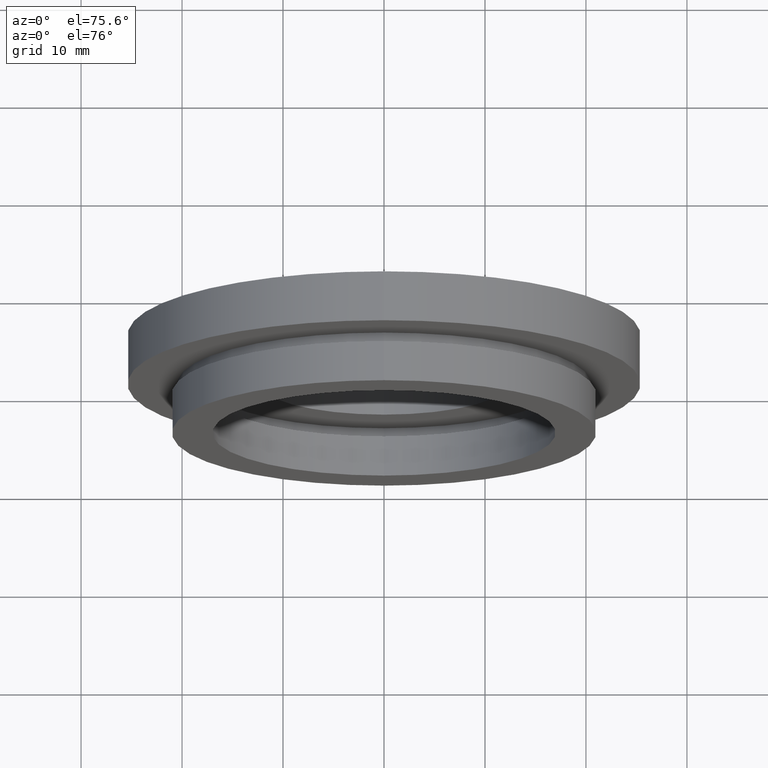
[diagram: clean part render]
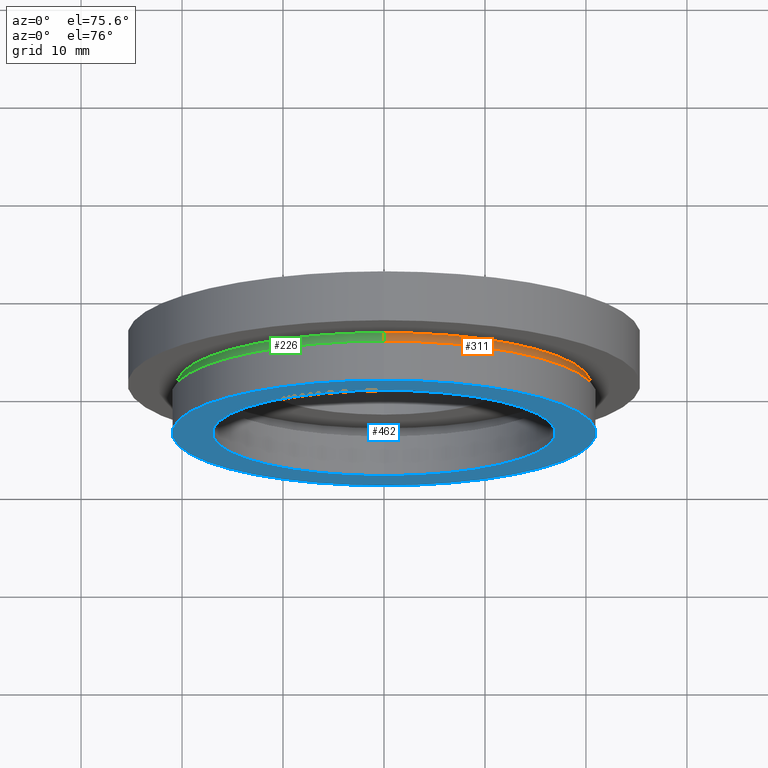
[diagram: same view with three faces highlighted in distinct colors, each labeled with its STEP entity id]
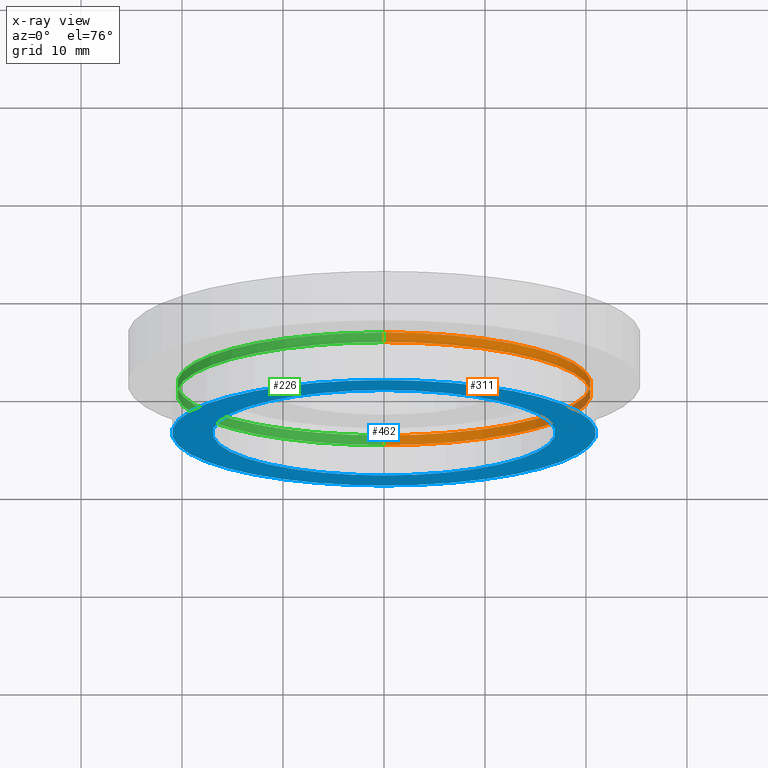
[diagram: x-ray of the same camera — body ghosted, the three highlighted faces saturated]
A machine part, auxiliary view with three faces highlighted in distinct colors.
The next image is the same camera in x-ray (body ghosted, the three faces saturated) — at least one of them is partly hidden behind the body in this view.
Their STEP definitions:

[orange] entity #311 — the highlighted cylindrical surface (partial cylindrical patch) has radius 20.5 mm, axis along (-0, 1, -0).
#4 = DIRECTION ( 'NONE',  ( -0.0000000000000000000, 1.000000000000000000, -0.0000000000000000000 ) ) ;
#12 = CARTESIAN_POINT ( 'NONE',  ( 2.510525938252074500E-015, 5.000000000000000900, -20.50000000000000000 ) ) ;
#15 = LINE ( 'NONE', #211, #257 ) ;
#18 = AXIS2_PLACEMENT_3D ( 'NONE', #131, #366, #618 ) ;
#23 = DIRECTION ( 'NONE',  ( 0.0000000000000000000, 0.0000000000000000000, 1.000000000000000000 ) ) ;
#48 = ORIENTED_EDGE ( 'NONE', *, *, #132, .F. ) ;
#66 = CARTESIAN_POINT ( 'NONE',  ( 0.0000000000000000000, 4.000000000000000000, 0.0000000000000000000 ) ) ;
#68 = VERTEX_POINT ( 'NONE', #12 ) ;
#80 = AXIS2_PLACEMENT_3D ( 'NONE', #66, #130, #23 ) ;
#89 = CARTESIAN_POINT ( 'NONE',  ( 2.510525938252074500E-015, 4.000000000000000000, -20.50000000000000000 ) ) ;
#111 = DIRECTION ( 'NONE',  ( -0.0000000000000000000, 1.000000000000000000, -0.0000000000000000000 ) ) ;
#130 = DIRECTION ( 'NONE',  ( -0.0000000000000000000, 1.000000000000000000, -0.0000000000000000000 ) ) ;
#131 = CARTESIAN_POINT ( 'NONE',  ( 0.0000000000000000000, 17.41929831819392000, 0.0000000000000000000 ) ) ;
#132 = EDGE_CURVE ( 'NONE', #267, #68, #359, .T. ) ;
#174 = CIRCLE ( 'NONE', #80, 20.50000000000000000 ) ;
#206 = CARTESIAN_POINT ( 'NONE',  ( 0.0000000000000000000, 5.000000000000000900, 0.0000000000000000000 ) ) ;
#211 = CARTESIAN_POINT ( 'NONE',  ( 2.510525938252074500E-015, 17.41929831819392000, -20.50000000000000000 ) ) ;
#221 = VERTEX_POINT ( 'NONE', #483 ) ;
#257 = VECTOR ( 'NONE', #504, 1000.000000000000000 ) ;
#266 = CARTESIAN_POINT ( 'NONE',  ( 0.0000000000000000000, 5.000000000000000900, 20.50000000000000000 ) ) ;
#267 = VERTEX_POINT ( 'NONE', #266 ) ;
#297 = LINE ( 'NONE', #452, #332 ) ;
#299 = EDGE_CURVE ( 'NONE', #221, #397, #174, .T. ) ;
#311 = ADVANCED_FACE ( 'NONE', ( #595 ), #342, .T. ) ;
#332 = VECTOR ( 'NONE', #111, 1000.000000000000000 ) ;
#342 = CYLINDRICAL_SURFACE ( 'NONE', #18, 20.50000000000000000 ) ;
#359 = CIRCLE ( 'NONE', #405, 20.50000000000000000 ) ;
#366 = DIRECTION ( 'NONE',  ( -0.0000000000000000000, 1.000000000000000000, -0.0000000000000000000 ) ) ;
#397 = VERTEX_POINT ( 'NONE', #89 ) ;
#405 = AXIS2_PLACEMENT_3D ( 'NONE', #206, #4, #432 ) ;
#413 = ORIENTED_EDGE ( 'NONE', *, *, #299, .T. ) ;
#424 = EDGE_CURVE ( 'NONE', #221, #267, #297, .T. ) ;
#432 = DIRECTION ( 'NONE',  ( 0.0000000000000000000, 0.0000000000000000000, 1.000000000000000000 ) ) ;
#440 = EDGE_CURVE ( 'NONE', #397, #68, #15, .T. ) ;
#452 = CARTESIAN_POINT ( 'NONE',  ( 0.0000000000000000000, 17.41929831819392000, 20.50000000000000000 ) ) ;
#483 = CARTESIAN_POINT ( 'NONE',  ( 0.0000000000000000000, 4.000000000000000000, 20.50000000000000000 ) ) ;
#504 = DIRECTION ( 'NONE',  ( -0.0000000000000000000, 1.000000000000000000, -0.0000000000000000000 ) ) ;
#526 = EDGE_LOOP ( 'NONE', ( #413, #604, #48, #549 ) ) ;
#549 = ORIENTED_EDGE ( 'NONE', *, *, #424, .F. ) ;
#595 = FACE_OUTER_BOUND ( 'NONE', #526, .T. ) ;
#604 = ORIENTED_EDGE ( 'NONE', *, *, #440, .T. ) ;
#618 = DIRECTION ( 'NONE',  ( 0.0000000000000000000, 0.0000000000000000000, 1.000000000000000000 ) ) ;

[blue] entity #462 — the highlighted planar face has unit normal (-0, 1, 0).
#9 = CARTESIAN_POINT ( 'NONE',  ( 0.0000000000000000000, 0.0000000000000000000, 0.0000000000000000000 ) ) ;
#37 = DIRECTION ( 'NONE',  ( 0.0000000000000000000, 0.0000000000000000000, 1.000000000000000000 ) ) ;
#69 = DIRECTION ( 'NONE',  ( 0.0000000000000000000, 0.0000000000000000000, 1.000000000000000000 ) ) ;
#81 = VERTEX_POINT ( 'NONE', #88 ) ;
#88 = CARTESIAN_POINT ( 'NONE',  ( 2.571758278209442100E-015, 0.0000000000000000000, -21.00000000000000400 ) ) ;
#102 = AXIS2_PLACEMENT_3D ( 'NONE', #449, #269, #612 ) ;
#137 = EDGE_LOOP ( 'NONE', ( #546, #330 ) ) ;
#183 = AXIS2_PLACEMENT_3D ( 'NONE', #216, #404, #590 ) ;
#216 = CARTESIAN_POINT ( 'NONE',  ( 0.0000000000000000000, 0.0000000000000000000, 0.0000000000000000000 ) ) ;
#218 = CIRCLE ( 'NONE', #102, 21.00000000000000400 ) ;
#237 = CIRCLE ( 'NONE', #275, 17.00000000000000400 ) ;
#253 = ORIENTED_EDGE ( 'NONE', *, *, #387, .T. ) ;
#259 = CARTESIAN_POINT ( 'NONE',  ( 0.0000000000000000000, 0.0000000000000000000, 0.0000000000000000000 ) ) ;
#269 = DIRECTION ( 'NONE',  ( -0.0000000000000000000, 1.000000000000000000, -0.0000000000000000000 ) ) ;
#275 = AXIS2_PLACEMENT_3D ( 'NONE', #259, #363, #69 ) ;
#281 = PLANE ( 'NONE',  #477 ) ;
#287 = CARTESIAN_POINT ( 'NONE',  ( 0.0000000000000000000, 0.0000000000000000000, 17.00000000000000400 ) ) ;
#307 = CARTESIAN_POINT ( 'NONE',  ( 2.081899558550500700E-015, 0.0000000000000000000, -17.00000000000000400 ) ) ;
#325 = EDGE_CURVE ( 'NONE', #358, #331, #237, .T. ) ;
#328 = EDGE_CURVE ( 'NONE', #534, #81, #467, .T. ) ;
#330 = ORIENTED_EDGE ( 'NONE', *, *, #346, .F. ) ;
#331 = VERTEX_POINT ( 'NONE', #307 ) ;
#346 = EDGE_CURVE ( 'NONE', #81, #534, #218, .T. ) ;
#351 = CIRCLE ( 'NONE', #183, 17.00000000000000400 ) ;
#358 = VERTEX_POINT ( 'NONE', #287 ) ;
#363 = DIRECTION ( 'NONE',  ( -0.0000000000000000000, 1.000000000000000000, -0.0000000000000000000 ) ) ;
#387 = EDGE_CURVE ( 'NONE', #331, #358, #351, .T. ) ;
#389 = DIRECTION ( 'NONE',  ( 0.0000000000000000000, 0.0000000000000000000, 1.000000000000000000 ) ) ;
#399 = AXIS2_PLACEMENT_3D ( 'NONE', #9, #475, #37 ) ;
#401 = CARTESIAN_POINT ( 'NONE',  ( 17.00000000000000400, 0.0000000000000000000, 0.0000000000000000000 ) ) ;
#404 = DIRECTION ( 'NONE',  ( -0.0000000000000000000, 1.000000000000000000, -0.0000000000000000000 ) ) ;
#421 = DIRECTION ( 'NONE',  ( -0.0000000000000000000, 1.000000000000000000, 0.0000000000000000000 ) ) ;
#449 = CARTESIAN_POINT ( 'NONE',  ( 0.0000000000000000000, 0.0000000000000000000, 0.0000000000000000000 ) ) ;
#462 = ADVANCED_FACE ( 'NONE', ( #551, #503 ), #281, .F. ) ;
#467 = CIRCLE ( 'NONE', #399, 21.00000000000000400 ) ;
#475 = DIRECTION ( 'NONE',  ( -0.0000000000000000000, 1.000000000000000000, -0.0000000000000000000 ) ) ;
#477 = AXIS2_PLACEMENT_3D ( 'NONE', #401, #421, #389 ) ;
#485 = EDGE_LOOP ( 'NONE', ( #487, #253 ) ) ;
#487 = ORIENTED_EDGE ( 'NONE', *, *, #325, .T. ) ;
#503 = FACE_BOUND ( 'NONE', #485, .T. ) ;
#534 = VERTEX_POINT ( 'NONE', #594 ) ;
#546 = ORIENTED_EDGE ( 'NONE', *, *, #328, .F. ) ;
#551 = FACE_OUTER_BOUND ( 'NONE', #137, .T. ) ;
#590 = DIRECTION ( 'NONE',  ( 0.0000000000000000000, 0.0000000000000000000, 1.000000000000000000 ) ) ;
#594 = CARTESIAN_POINT ( 'NONE',  ( 0.0000000000000000000, 0.0000000000000000000, 21.00000000000000400 ) ) ;
#612 = DIRECTION ( 'NONE',  ( 0.0000000000000000000, 0.0000000000000000000, 1.000000000000000000 ) ) ;

[green] entity #226 — the highlighted cylindrical surface (partial cylindrical patch) has radius 20.5 mm, axis along (-0, 1, -0).
#12 = CARTESIAN_POINT ( 'NONE',  ( 2.510525938252074500E-015, 5.000000000000000900, -20.50000000000000000 ) ) ;
#15 = LINE ( 'NONE', #211, #257 ) ;
#42 = ORIENTED_EDGE ( 'NONE', *, *, #424, .T. ) ;
#55 = ORIENTED_EDGE ( 'NONE', *, *, #440, .F. ) ;
#68 = VERTEX_POINT ( 'NONE', #12 ) ;
#82 = EDGE_LOOP ( 'NONE', ( #55, #438, #42, #439 ) ) ;
#87 = CIRCLE ( 'NONE', #263, 20.50000000000000000 ) ;
#89 = CARTESIAN_POINT ( 'NONE',  ( 2.510525938252074500E-015, 4.000000000000000000, -20.50000000000000000 ) ) ;
#111 = DIRECTION ( 'NONE',  ( -0.0000000000000000000, 1.000000000000000000, -0.0000000000000000000 ) ) ;
#204 = CIRCLE ( 'NONE', #256, 20.50000000000000000 ) ;
#211 = CARTESIAN_POINT ( 'NONE',  ( 2.510525938252074500E-015, 17.41929831819392000, -20.50000000000000000 ) ) ;
#221 = VERTEX_POINT ( 'NONE', #483 ) ;
#226 = ADVANCED_FACE ( 'NONE', ( #464 ), #236, .T. ) ;
#236 = CYLINDRICAL_SURFACE ( 'NONE', #314, 20.50000000000000000 ) ;
#240 = DIRECTION ( 'NONE',  ( 0.0000000000000000000, 0.0000000000000000000, 1.000000000000000000 ) ) ;
#256 = AXIS2_PLACEMENT_3D ( 'NONE', #576, #497, #524 ) ;
#257 = VECTOR ( 'NONE', #504, 1000.000000000000000 ) ;
#263 = AXIS2_PLACEMENT_3D ( 'NONE', #459, #559, #482 ) ;
#266 = CARTESIAN_POINT ( 'NONE',  ( 0.0000000000000000000, 5.000000000000000900, 20.50000000000000000 ) ) ;
#267 = VERTEX_POINT ( 'NONE', #266 ) ;
#297 = LINE ( 'NONE', #452, #332 ) ;
#304 = EDGE_CURVE ( 'NONE', #397, #221, #87, .T. ) ;
#310 = EDGE_CURVE ( 'NONE', #68, #267, #204, .T. ) ;
#314 = AXIS2_PLACEMENT_3D ( 'NONE', #382, #536, #240 ) ;
#332 = VECTOR ( 'NONE', #111, 1000.000000000000000 ) ;
#382 = CARTESIAN_POINT ( 'NONE',  ( 0.0000000000000000000, 17.41929831819392000, 0.0000000000000000000 ) ) ;
#397 = VERTEX_POINT ( 'NONE', #89 ) ;
#424 = EDGE_CURVE ( 'NONE', #221, #267, #297, .T. ) ;
#438 = ORIENTED_EDGE ( 'NONE', *, *, #304, .T. ) ;
#439 = ORIENTED_EDGE ( 'NONE', *, *, #310, .F. ) ;
#440 = EDGE_CURVE ( 'NONE', #397, #68, #15, .T. ) ;
#452 = CARTESIAN_POINT ( 'NONE',  ( 0.0000000000000000000, 17.41929831819392000, 20.50000000000000000 ) ) ;
#459 = CARTESIAN_POINT ( 'NONE',  ( 0.0000000000000000000, 4.000000000000000000, 0.0000000000000000000 ) ) ;
#464 = FACE_OUTER_BOUND ( 'NONE', #82, .T. ) ;
#482 = DIRECTION ( 'NONE',  ( 0.0000000000000000000, 0.0000000000000000000, 1.000000000000000000 ) ) ;
#483 = CARTESIAN_POINT ( 'NONE',  ( 0.0000000000000000000, 4.000000000000000000, 20.50000000000000000 ) ) ;
#497 = DIRECTION ( 'NONE',  ( -0.0000000000000000000, 1.000000000000000000, -0.0000000000000000000 ) ) ;
#504 = DIRECTION ( 'NONE',  ( -0.0000000000000000000, 1.000000000000000000, -0.0000000000000000000 ) ) ;
#524 = DIRECTION ( 'NONE',  ( 0.0000000000000000000, 0.0000000000000000000, 1.000000000000000000 ) ) ;
#536 = DIRECTION ( 'NONE',  ( -0.0000000000000000000, 1.000000000000000000, -0.0000000000000000000 ) ) ;
#559 = DIRECTION ( 'NONE',  ( -0.0000000000000000000, 1.000000000000000000, -0.0000000000000000000 ) ) ;
#576 = CARTESIAN_POINT ( 'NONE',  ( 0.0000000000000000000, 5.000000000000000900, 0.0000000000000000000 ) ) ;